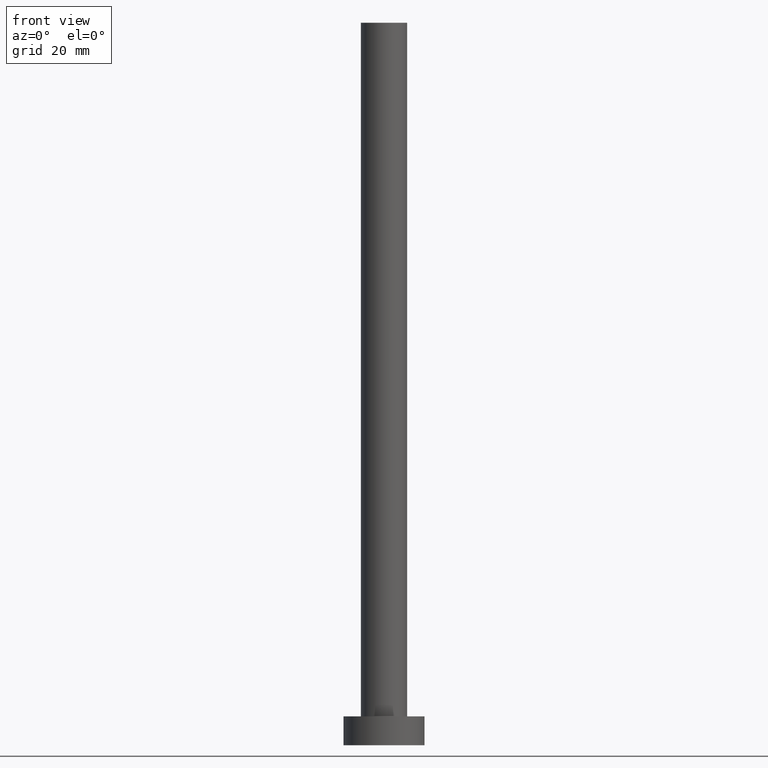
[diagram: clean part render]
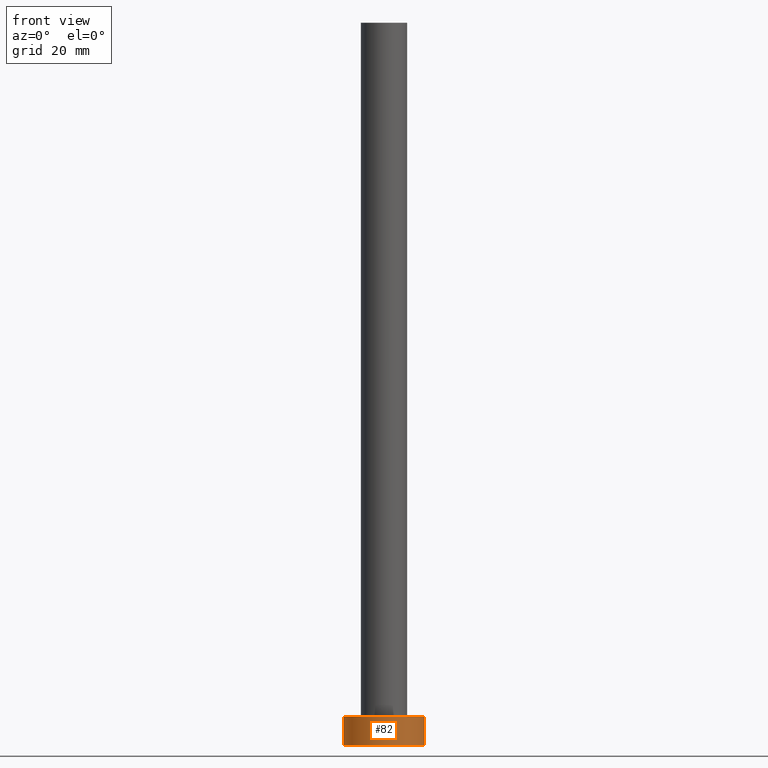
[diagram: same view with one face highlighted and labeled with its STEP entity id]
A machine part, front view. The second image highlights one B-rep face of the part: STEP entity #82.
In plain terms, the highlighted cylindrical surface (partial cylindrical patch) has radius 7 mm, axis along (-0, -0, -1).
Its self-contained STEP definition (entity closure, byte-faithful):
#2 = VECTOR ( 'NONE', #40, 1000.000000000000000 ) ;
#19 = CARTESIAN_POINT ( 'NONE',  ( 0.000000000000000000, 0.000000000000000000, 0.000000000000000000 ) ) ;
#22 = CARTESIAN_POINT ( 'NONE',  ( 7.000000000000000000, 8.572527594031473190E-16, 5.000000000000000000 ) ) ;
#25 = CARTESIAN_POINT ( 'NONE',  ( -7.000000000000000000, 0.000000000000000000, 5.000000000000000000 ) ) ;
#29 = EDGE_LOOP ( 'NONE', ( #152, #47, #169, #228 ) ) ;
#36 = CARTESIAN_POINT ( 'NONE',  ( 7.000000000000000000, 8.572527594031473190E-16, 5.000000000000000000 ) ) ;
#40 = DIRECTION ( 'NONE',  ( -0.000000000000000000, -0.000000000000000000, -1.000000000000000000 ) ) ;
#47 = ORIENTED_EDGE ( 'NONE', *, *, #154, .F. ) ;
#59 = AXIS2_PLACEMENT_3D ( 'NONE', #19, #104, #101 ) ;
#66 = LINE ( 'NONE', #25, #2 ) ;
#82 = ADVANCED_FACE ( 'NONE', ( #209 ), #160, .T. ) ;
#88 = VERTEX_POINT ( 'NONE', #123 ) ;
#90 = VERTEX_POINT ( 'NONE', #36 ) ;
#101 = DIRECTION ( 'NONE',  ( 1.000000000000000000, 0.000000000000000000, 0.000000000000000000 ) ) ;
#102 = EDGE_CURVE ( 'NONE', #205, #88, #215, .T. ) ;
#104 = DIRECTION ( 'NONE',  ( 0.000000000000000000, 0.000000000000000000, 1.000000000000000000 ) ) ;
#108 = VECTOR ( 'NONE', #149, 1000.000000000000000 ) ;
#109 = AXIS2_PLACEMENT_3D ( 'NONE', #218, #236, #180 ) ;
#123 = CARTESIAN_POINT ( 'NONE',  ( 7.000000000000000000, 8.572527594031473190E-16, 0.000000000000000000 ) ) ;
#133 = EDGE_CURVE ( 'NONE', #90, #88, #166, .T. ) ;
#149 = DIRECTION ( 'NONE',  ( -0.000000000000000000, -0.000000000000000000, -1.000000000000000000 ) ) ;
#151 = CIRCLE ( 'NONE', #109, 7.000000000000000000 ) ;
#152 = ORIENTED_EDGE ( 'NONE', *, *, #133, .F. ) ;
#154 = EDGE_CURVE ( 'NONE', #248, #90, #151, .T. ) ;
#160 = CYLINDRICAL_SURFACE ( 'NONE', #167, 7.000000000000000000 ) ;
#166 = LINE ( 'NONE', #22, #108 ) ;
#167 = AXIS2_PLACEMENT_3D ( 'NONE', #233, #231, #173 ) ;
#169 = ORIENTED_EDGE ( 'NONE', *, *, #189, .T. ) ;
#173 = DIRECTION ( 'NONE',  ( -1.000000000000000000, 0.000000000000000000, 0.000000000000000000 ) ) ;
#180 = DIRECTION ( 'NONE',  ( 1.000000000000000000, 0.000000000000000000, 0.000000000000000000 ) ) ;
#181 = CARTESIAN_POINT ( 'NONE',  ( -7.000000000000000000, 0.000000000000000000, 0.000000000000000000 ) ) ;
#189 = EDGE_CURVE ( 'NONE', #248, #205, #66, .T. ) ;
#201 = CARTESIAN_POINT ( 'NONE',  ( -7.000000000000000000, 0.000000000000000000, 5.000000000000000000 ) ) ;
#205 = VERTEX_POINT ( 'NONE', #181 ) ;
#209 = FACE_OUTER_BOUND ( 'NONE', #29, .T. ) ;
#215 = CIRCLE ( 'NONE', #59, 7.000000000000000000 ) ;
#218 = CARTESIAN_POINT ( 'NONE',  ( 0.000000000000000000, 0.000000000000000000, 5.000000000000000000 ) ) ;
#228 = ORIENTED_EDGE ( 'NONE', *, *, #102, .T. ) ;
#231 = DIRECTION ( 'NONE',  ( -0.000000000000000000, -0.000000000000000000, -1.000000000000000000 ) ) ;
#233 = CARTESIAN_POINT ( 'NONE',  ( 0.000000000000000000, 0.000000000000000000, 5.000000000000000000 ) ) ;
#236 = DIRECTION ( 'NONE',  ( 0.000000000000000000, 0.000000000000000000, 1.000000000000000000 ) ) ;
#248 = VERTEX_POINT ( 'NONE', #201 ) ;